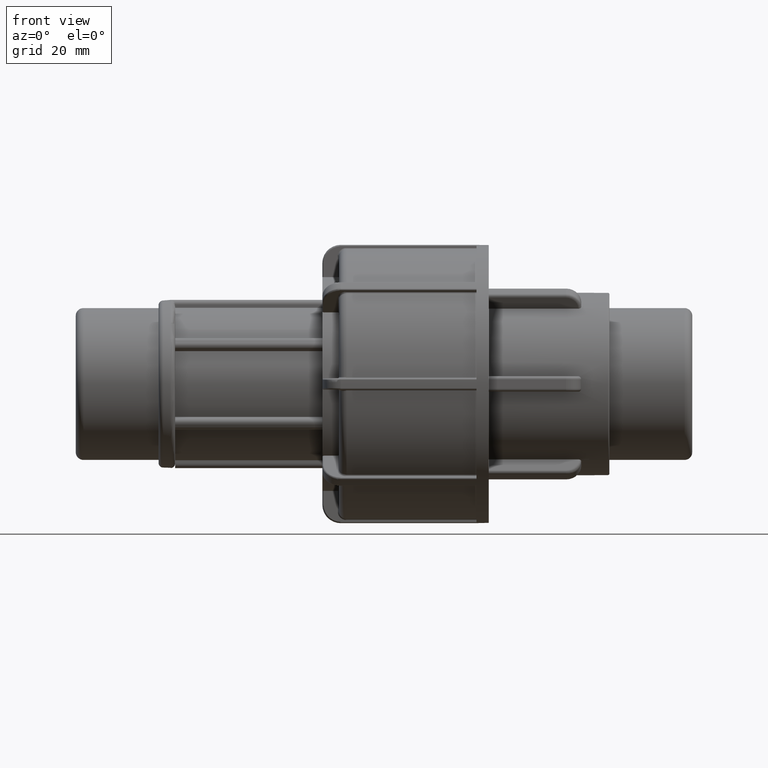
[diagram: clean part render]
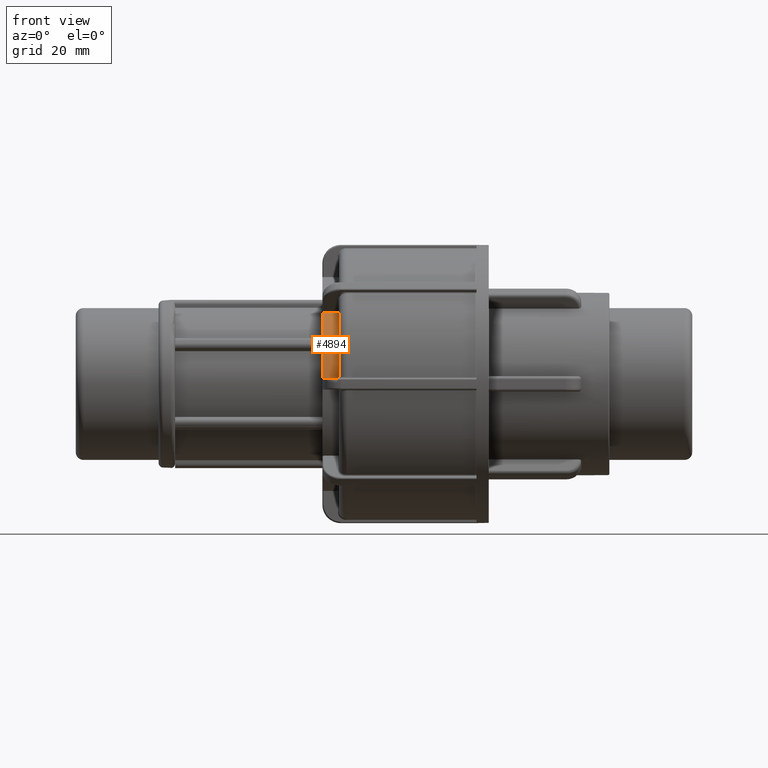
[diagram: same view with one face highlighted and labeled with its STEP entity id]
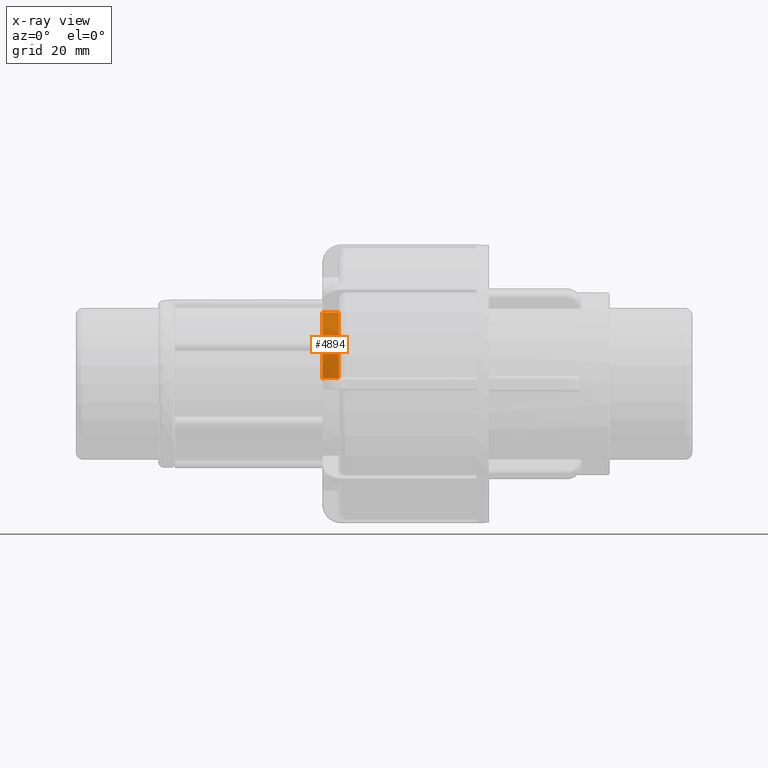
[diagram: x-ray of the same camera — body ghosted, the highlighted face saturated]
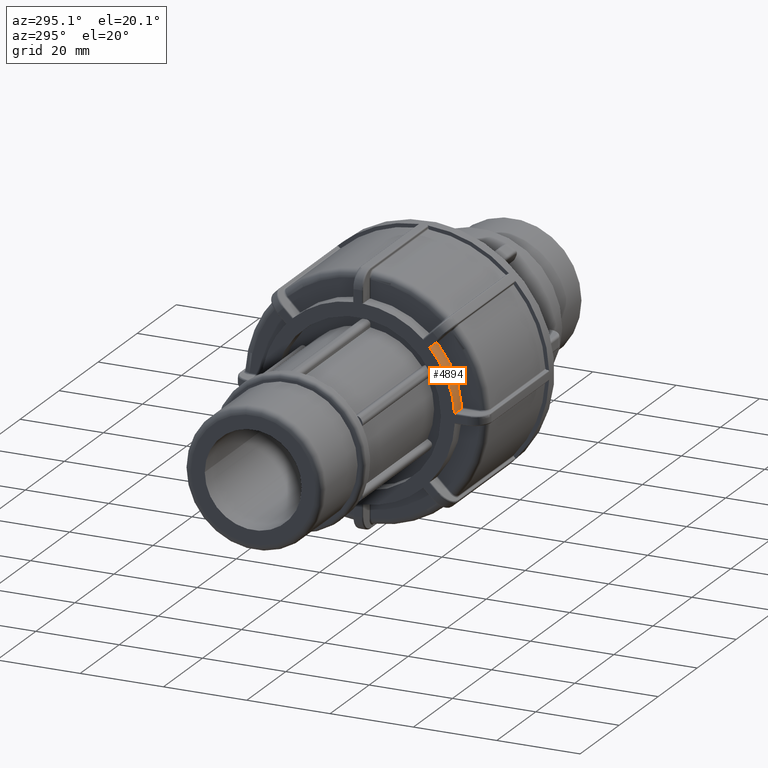
[diagram: same view with one face highlighted and labeled with its STEP entity id]
A machine part, front view. The second image highlights one B-rep face of the part: STEP entity #4894.
The next image is the same camera in x-ray: the body ghosted, the highlighted face saturated — about 0% of this face is hidden behind the body in this view.
A second angle (auxiliary view) of the same face is appended — the face is thin or edge-on in the first view.
In plain terms, the highlighted cylindrical surface (partial cylindrical patch) has radius 23.2743 mm, axis along (1, 0, 0).
Its self-contained STEP definition (entity closure, byte-faithful):
#355=FACE_OUTER_BOUND('',#658,.T.);
#658=EDGE_LOOP('',(#3961,#3962,#3963,#3964,#3965,#3966,#3967,#3968));
#851=B_SPLINE_CURVE_WITH_KNOTS('',3,(#8480,#8481,#8482,#8483,#8484,#8485,
#8486,#8487,#8488,#8489),.UNSPECIFIED.,.F.,.F.,(4,2,2,2,4),(-0.0456019326035365,
-0.0341956466644442,-0.0227893607253519,-0.011394680362676,0.),
 .UNSPECIFIED.);
#858=B_SPLINE_CURVE_WITH_KNOTS('',3,(#8601,#8602,#8603,#8604,#8605,#8606,
#8607,#8608,#8609,#8610),.UNSPECIFIED.,.F.,.F.,(4,2,2,2,4),(0.182511762510932,
0.193905036529118,0.205298310547304,0.216714869172378,0.228131427797451),
 .UNSPECIFIED.);
#867=B_SPLINE_CURVE_WITH_KNOTS('',3,(#8788,#8789,#8790,#8791,#8792,#8793,
#8794,#8795,#8796,#8797),.UNSPECIFIED.,.F.,.F.,(4,2,2,2,4),(0.,0.0113946803626759,
0.0227893607253519,0.0341956466644442,0.0456019326035364),.UNSPECIFIED.);
#874=B_SPLINE_CURVE_WITH_KNOTS('',3,(#8956,#8957,#8958,#8959,#8960,#8961,
#8962,#8963,#8964,#8965),.UNSPECIFIED.,.F.,.F.,(4,2,2,2,4),(0.136892097224413,
0.148308655849487,0.159725214474561,0.171118488492747,0.182511762510933),
 .UNSPECIFIED.);
#1107=LINE('',#8670,#1433);
#1114=LINE('',#8835,#1440);
#1433=VECTOR('',#6408,2.99499999999998);
#1440=VECTOR('',#6449,2.99499999999998);
#1674=CIRCLE('',#5217,23.2743);
#1757=CIRCLE('',#5365,23.2743);
#2044=VERTEX_POINT('',#7729);
#2045=VERTEX_POINT('',#7731);
#2141=VERTEX_POINT('',#8478);
#2150=VERTEX_POINT('',#8599);
#2151=VERTEX_POINT('',#8600);
#2169=VERTEX_POINT('',#8787);
#2171=VERTEX_POINT('',#8834);
#2187=VERTEX_POINT('',#8955);
#2590=EDGE_CURVE('',#2045,#2044,#1674,.T.);
#2740=EDGE_CURVE('',#2141,#2044,#851,.F.);
#2757=EDGE_CURVE('',#2150,#2151,#858,.T.);
#2772=EDGE_CURVE('',#2141,#2150,#1107,.T.);
#2790=EDGE_CURVE('',#2045,#2169,#867,.F.);
#2795=EDGE_CURVE('',#2171,#2169,#1114,.T.);
#2819=EDGE_CURVE('',#2187,#2171,#874,.T.);
#2821=EDGE_CURVE('',#2187,#2151,#1757,.T.);
#3961=ORIENTED_EDGE('',*,*,#2757,.T.);
#3962=ORIENTED_EDGE('',*,*,#2821,.F.);
#3963=ORIENTED_EDGE('',*,*,#2819,.T.);
#3964=ORIENTED_EDGE('',*,*,#2795,.T.);
#3965=ORIENTED_EDGE('',*,*,#2790,.F.);
#3966=ORIENTED_EDGE('',*,*,#2590,.T.);
#3967=ORIENTED_EDGE('',*,*,#2740,.F.);
#3968=ORIENTED_EDGE('',*,*,#2772,.T.);
#4665=CYLINDRICAL_SURFACE('',#5364,23.2743);
#4894=ADVANCED_FACE('',(#355),#4665,.T.);
#5217=AXIS2_PLACEMENT_3D('',#7732,#6104,#6105);
#5364=AXIS2_PLACEMENT_3D('',#8967,#6489,#6490);
#5365=AXIS2_PLACEMENT_3D('',#8968,#6491,#6492);
#6104=DIRECTION('center_axis',(1.,0.,0.));
#6105=DIRECTION('ref_axis',(0.,0.,-1.));
#6408=DIRECTION('',(1.,0.,0.));
#6449=DIRECTION('',(-1.,0.,0.));
#6489=DIRECTION('center_axis',(1.,0.,0.));
#6490=DIRECTION('ref_axis',(0.,1.,0.));
#6491=DIRECTION('center_axis',(1.,0.,0.));
#6492=DIRECTION('ref_axis',(0.,0.,-1.));
#7729=CARTESIAN_POINT('',(-80.4,-23.2566008745904,0.907499999999997));
#7731=CARTESIAN_POINT('',(-80.4,-17.0865995896987,15.8032007818451));
#7732=CARTESIAN_POINT('Origin',(-80.4,0.,0.));
#8478=CARTESIAN_POINT('',(-80.0975,-23.2428255702701,1.21));
#8480=CARTESIAN_POINT('Ctrl Pts',(-80.4,-23.2566008745904,0.907499999999996));
#8481=CARTESIAN_POINT('Ctrl Pts',(-80.4,-23.2551183803815,0.945492039795955));
#8482=CARTESIAN_POINT('Ctrl Pts',(-80.3924058906014,-23.2534343581618,0.986013641052401));
#8483=CARTESIAN_POINT('Ctrl Pts',(-80.3615217872633,-23.2501537996473,1.06055676058983));
#8484=CARTESIAN_POINT('Ctrl Pts',(-80.3382317891745,-23.2485625732495,1.09457851073959));
#8485=CARTESIAN_POINT('Ctrl Pts',(-80.2845099228712,-23.2459720760326,1.1482789763645));
#8486=CARTESIAN_POINT('Ctrl Pts',(-80.2505060657535,-23.2448005698471,1.17154840881346));
#8487=CARTESIAN_POINT('Ctrl Pts',(-80.1759923621774,-23.2432246386532,1.20240908318883));
#8488=CARTESIAN_POINT('Ctrl Pts',(-80.1354822678756,-23.2428255702701,1.21));
#8489=CARTESIAN_POINT('Ctrl Pts',(-80.0975,-23.2428255702701,1.21));
#8599=CARTESIAN_POINT('',(-77.1025,-23.2428255702701,1.21));
#8600=CARTESIAN_POINT('',(-76.8,-23.2251024591927,1.5125));
#8601=CARTESIAN_POINT('Ctrl Pts',(-77.1025,-23.2428255702701,1.21));
#8602=CARTESIAN_POINT('Ctrl Pts',(-77.0645224199394,-23.2428255702701,1.21));
#8603=CARTESIAN_POINT('Ctrl Pts',(-77.0240168711742,-23.2424343719543,1.21758925534969));
#8604=CARTESIAN_POINT('Ctrl Pts',(-76.9495123971191,-23.2407975819354,1.24844178275421));
#8605=CARTESIAN_POINT('Ctrl Pts',(-76.9155134742325,-23.2395466659966,1.27170477792061));
#8606=CARTESIAN_POINT('Ctrl Pts',(-76.8617742289142,-23.2365457417816,1.32540832448229));
#8607=CARTESIAN_POINT('Ctrl Pts',(-76.8384744983499,-23.2345935507479,1.3594476072617));
#8608=CARTESIAN_POINT('Ctrl Pts',(-76.8075877245088,-23.2301110845408,1.43400636862133));
#8609=CARTESIAN_POINT('Ctrl Pts',(-76.8,-23.227575508138,1.47452524618732));
#8610=CARTESIAN_POINT('Ctrl Pts',(-76.8,-23.2251024591927,1.5125));
#8670=CARTESIAN_POINT('',(-78.6,-23.2428255702701,1.21));
#8787=CARTESIAN_POINT('',(-80.0975,-17.2907587799098,15.5795603694383));
#8788=CARTESIAN_POINT('Ctrl Pts',(-80.0975,-17.2907587799098,15.5795603694383));
#8789=CARTESIAN_POINT('Ctrl Pts',(-80.1354822678756,-17.2907587799098,15.5795603694383));
#8790=CARTESIAN_POINT('Ctrl Pts',(-80.1759923621774,-17.2856733751171,15.5852101421508));
#8791=CARTESIAN_POINT('Ctrl Pts',(-80.2505060657535,-17.2649659346281,15.6081462859075));
#8792=CARTESIAN_POINT('Ctrl Pts',(-80.2845099228712,-17.249340341117,15.6254286393545));
#8793=CARTESIAN_POINT('Ctrl Pts',(-80.3382317891744,-17.2132001358695,15.6652323608995));
#8794=CARTESIAN_POINT('Ctrl Pts',(-80.3615217872633,-17.1902682926071,15.6904145381144));
#8795=CARTESIAN_POINT('Ctrl Pts',(-80.3924058906014,-17.1398780524631,15.7454441886019));
#8796=CARTESIAN_POINT('Ctrl Pts',(-80.3999999999999,-17.1124157369613,15.7752880711661));
#8797=CARTESIAN_POINT('Ctrl Pts',(-80.3999999999999,-17.0865995896987,15.8032007818451));
#8834=CARTESIAN_POINT('',(-77.1025,-17.2907587799098,15.5795603694383));
#8835=CARTESIAN_POINT('',(-78.6,-17.2907587799098,15.5795603694383));
#8955=CARTESIAN_POINT('',(-76.8,-17.4921264491922,15.3531284361029));
#8956=CARTESIAN_POINT('Ctrl Pts',(-76.8,-17.4921264491922,15.3531284361029));
#8957=CARTESIAN_POINT('Ctrl Pts',(-76.8,-17.4670229529368,15.3817293517172));
#8958=CARTESIAN_POINT('Ctrl Pts',(-76.8075877245088,-17.4401647031124,15.4121734480788));
#8959=CARTESIAN_POINT('Ctrl Pts',(-76.8384744983499,-17.3906132796096,15.4680640360845));
#8960=CARTESIAN_POINT('Ctrl Pts',(-76.8617742289143,-17.3679242794477,15.4935138512826));
#8961=CARTESIAN_POINT('Ctrl Pts',(-76.9155134742325,-17.3320721113624,15.5336099670924));
#8962=CARTESIAN_POINT('Ctrl Pts',(-76.9495123971191,-17.3165072208726,15.5509439198683));
#8963=CARTESIAN_POINT('Ctrl Pts',(-77.0240168711742,-17.2958485748498,15.5739173365345));
#8964=CARTESIAN_POINT('Ctrl Pts',(-77.0645224199394,-17.2907587799098,15.5795603694383));
#8965=CARTESIAN_POINT('Ctrl Pts',(-77.1025,-17.2907587799098,15.5795603694383));
#8967=CARTESIAN_POINT('Origin',(-78.6,0.,0.));
#8968=CARTESIAN_POINT('Origin',(-76.8,0.,0.));